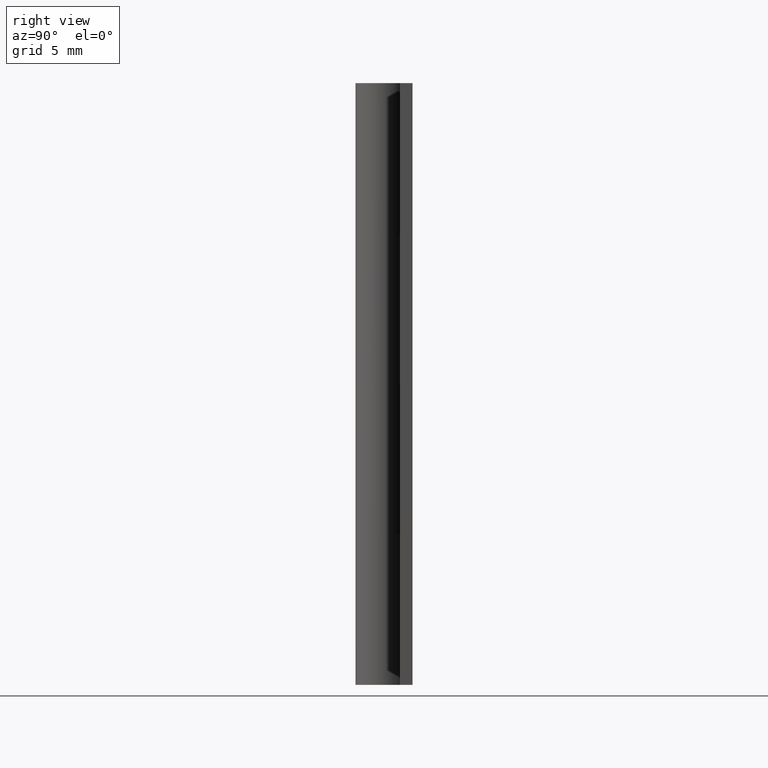
[diagram: clean part render]
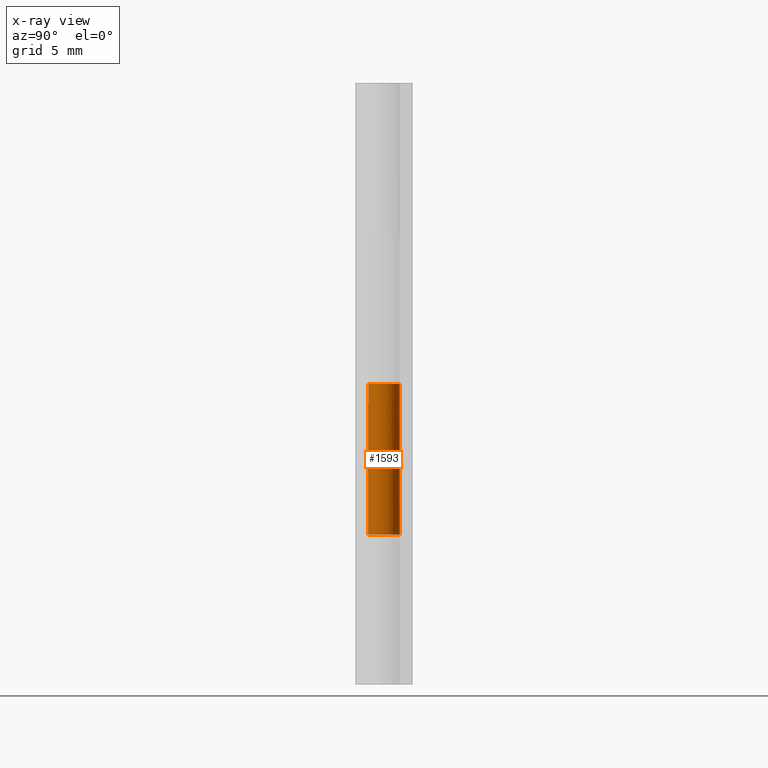
[diagram: x-ray — body ghosted, one internal face saturated and labeled with its STEP entity id]
A machine part, right view, then the same camera in x-ray: the body is ghosted and one INTERNAL B-rep face — a face not visible from any outside direction — is saturated and labeled: STEP entity #1593.
In plain terms, the highlighted face is a freeform B-spline surface patch.
Its self-contained STEP definition (entity closure, byte-faithful):
#1032=CARTESIAN_POINT('',(0.0,1.0,19.0));
#1033=VERTEX_POINT('',#1032);
#1039=CARTESIAN_POINT('',(-0.849382491745595,0.527777777777774,19.0));
#1040=VERTEX_POINT('',#1039);
#1041=CARTESIAN_POINT('',(0.0,1.0,19.0));
#1042=CARTESIAN_POINT('',(0.773778362738386,1.0,19.000000000000004));
#1043=CARTESIAN_POINT('',(0.967989507555512,0.250990663695759,19.0));
#1044=CARTESIAN_POINT('',(1.162200652372637,-0.498018672608482,19.000000000000004));
#1045=CARTESIAN_POINT('',(0.485912657903778,-0.874007373475125,19.0));
#1046=CARTESIAN_POINT('',(-0.190375336565083,-1.249996074341768,19.000000000000004));
#1047=CARTESIAN_POINT('',(-0.724070426544634,-0.689726045182776,19.0));
#1048=CARTESIAN_POINT('',(-1.257765516524184,-0.129456016023784,19.000000000000004));
#1049=CARTESIAN_POINT('',(-0.849382491745595,0.527777777777773,19.0));
#1057=(BOUNDED_CURVE()B_SPLINE_CURVE(2,(#1041,#1042,#1043,#1044,#1045,#1046,#1047,#1048,#1049),.UNSPECIFIED.,.F.,.U.)B_SPLINE_CURVE_WITH_KNOTS((3,2,2,2,3),(0.0,0.250000000000000,0.500000000000000,0.750000000000000,1.0),.UNSPECIFIED.)CURVE()GEOMETRIC_REPRESENTATION_ITEM()RATIONAL_B_SPLINE_CURVE((1.0,0.790882628363956,1.0,0.790882628363956,1.0,0.790882628363956,1.0,0.790882628363956,1.0))REPRESENTATION_ITEM(''));
#1058=EDGE_CURVE('',#1033,#1040,#1057,.T.);
#1223=CARTESIAN_POINT('',(-0.849382491745595,0.527777777777774,9.500000000000000));
#1224=VERTEX_POINT('',#1223);
#1230=CARTESIAN_POINT('',(0.0,1.0,9.500000000000000));
#1231=VERTEX_POINT('',#1230);
#1232=CARTESIAN_POINT('',(-0.849382491745594,0.527777777777774,9.500000000000000));
#1233=CARTESIAN_POINT('',(-1.257765516524184,-0.129456016023783,9.500000000000000));
#1234=CARTESIAN_POINT('',(-0.724070426544634,-0.689726045182775,9.500000000000000));
#1235=CARTESIAN_POINT('',(-0.190375336565083,-1.249996074341768,9.500000000000000));
#1236=CARTESIAN_POINT('',(0.485912657903777,-0.874007373475125,9.500000000000000));
#1237=CARTESIAN_POINT('',(1.162200652372638,-0.498018672608482,9.500000000000000));
#1238=CARTESIAN_POINT('',(0.967989507555512,0.250990663695759,9.500000000000000));
#1239=CARTESIAN_POINT('',(0.773778362738386,1.0,9.500000000000000));
#1240=CARTESIAN_POINT('',(0.0,1.0,9.500000000000000));
#1248=(BOUNDED_CURVE()B_SPLINE_CURVE(2,(#1232,#1233,#1234,#1235,#1236,#1237,#1238,#1239,#1240),.UNSPECIFIED.,.F.,.U.)B_SPLINE_CURVE_WITH_KNOTS((3,2,2,2,3),(0.0,0.250000000000000,0.500000000000000,0.750000000000000,1.0),.UNSPECIFIED.)CURVE()GEOMETRIC_REPRESENTATION_ITEM()RATIONAL_B_SPLINE_CURVE((1.0,0.790882628363956,1.0,0.790882628363956,1.0,0.790882628363956,1.0,0.790882628363956,1.0))REPRESENTATION_ITEM(''));
#1249=EDGE_CURVE('',#1224,#1231,#1248,.T.);
#1408=CARTESIAN_POINT('',(0.0,1.0,19.0));
#1409=CARTESIAN_POINT('',(0.0,1.0,9.500000000000000));
#1410=QUASI_UNIFORM_CURVE('',1,(#1408,#1409),.UNSPECIFIED.,.F.,.U.);
#1411=EDGE_CURVE('',#1033,#1231,#1410,.T.);
#1540=CARTESIAN_POINT('',(-0.849382491745595,0.527777777777774,19.0));
#1541=CARTESIAN_POINT('',(-0.849382491745595,0.527777777777774,9.500000000000000));
#1542=QUASI_UNIFORM_CURVE('',1,(#1540,#1541),.UNSPECIFIED.,.F.,.U.);
#1543=EDGE_CURVE('',#1040,#1224,#1542,.T.);
#1565=CARTESIAN_POINT('',(-0.833885822067168,0.551936985312058,19.237500000000001));
#1566=CARTESIAN_POINT('',(-0.833885822067168,0.551936985312058,9.256562499999998));
#1567=CARTESIAN_POINT('',(-1.523637780052715,-0.490164547677293,19.237500000000008));
#1568=CARTESIAN_POINT('',(-1.523637780052715,-0.490164547677293,9.256562499999998));
#1569=CARTESIAN_POINT('',(-0.355650761814877,-0.934618925348988,19.237500000000001));
#1570=CARTESIAN_POINT('',(-0.355650761814877,-0.934618925348988,9.256562499999998));
#1571=CARTESIAN_POINT('',(0.812336256422962,-1.379073303020684,19.237500000000008));
#1572=CARTESIAN_POINT('',(0.812336256422962,-1.379073303020684,9.256562499999998));
#1573=CARTESIAN_POINT('',(0.989859041551459,-0.142053081131053,19.237500000000001));
#1574=CARTESIAN_POINT('',(0.989859041551459,-0.142053081131053,9.256562499999998));
#1575=CARTESIAN_POINT('',(1.167381826679957,1.094967140758578,19.237500000000008));
#1576=CARTESIAN_POINT('',(1.167381826679957,1.094967140758578,9.256562499999998));
#1577=CARTESIAN_POINT('',(-0.078459095727844,0.996917333733128,19.237500000000001));
#1578=CARTESIAN_POINT('',(-0.078459095727844,0.996917333733128,9.256562499999998));
#1586=(BOUNDED_SURFACE()B_SPLINE_SURFACE(1,2,((#1565,#1567,#1569,#1571,#1573,#1575,#1577),(#1566,#1568,#1570,#1572,#1574,#1576,#1578)),.UNSPECIFIED.,.F.,.F.,.U.)B_SPLINE_SURFACE_WITH_KNOTS((2,2),(3,2,2,3),(0.0,9.980937500000007),(0.0,1.0,2.0,3.0),.UNSPECIFIED.)GEOMETRIC_REPRESENTATION_ITEM()RATIONAL_B_SPLINE_SURFACE(((1.0,0.624788514543960,1.0,0.624788514543960,1.0,0.624788514543960,1.0),(1.0,0.624788514543960,1.0,0.624788514543960,1.0,0.624788514543960,1.0)))REPRESENTATION_ITEM('')SURFACE());
#1587=ORIENTED_EDGE('',*,*,#1058,.F.);
#1588=ORIENTED_EDGE('',*,*,#1411,.T.);
#1589=ORIENTED_EDGE('',*,*,#1249,.F.);
#1590=ORIENTED_EDGE('',*,*,#1543,.F.);
#1591=EDGE_LOOP('',(#1587,#1588,#1589,#1590));
#1592=FACE_OUTER_BOUND('',#1591,.T.);
#1593=ADVANCED_FACE('',(#1592),#1586,.F.);